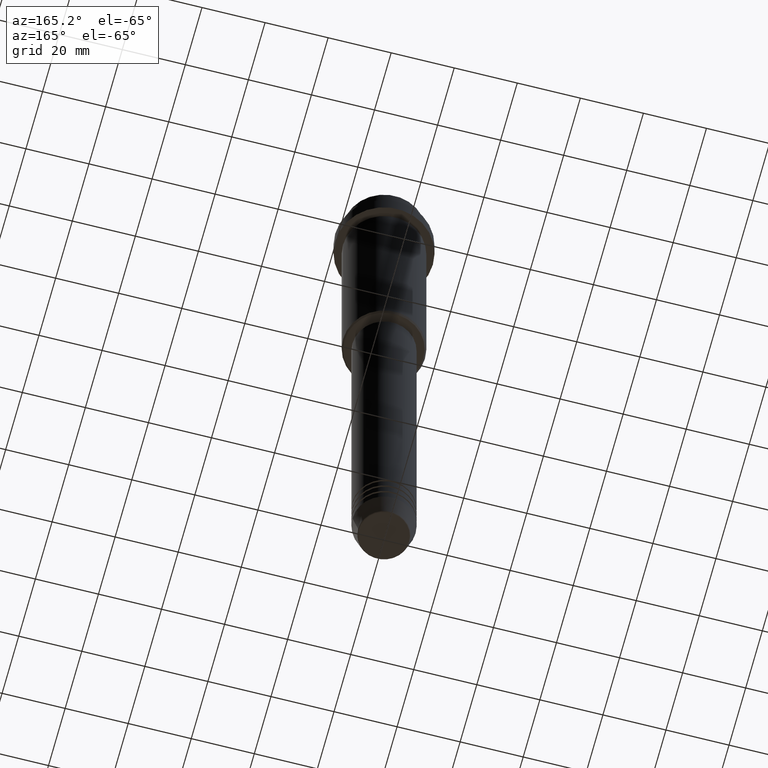
[diagram: clean part render]
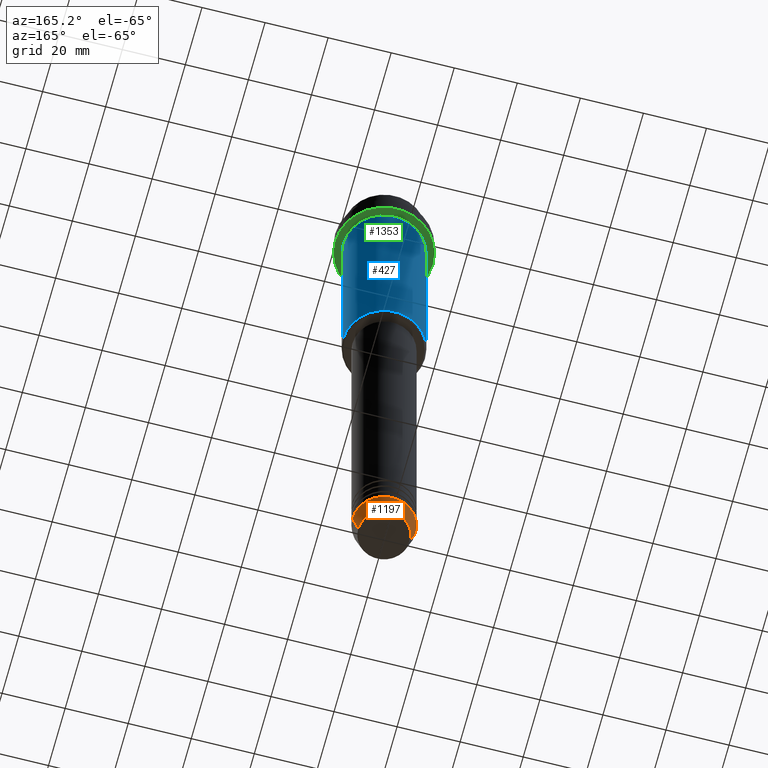
[diagram: same view with three faces highlighted in distinct colors, each labeled with its STEP entity id]
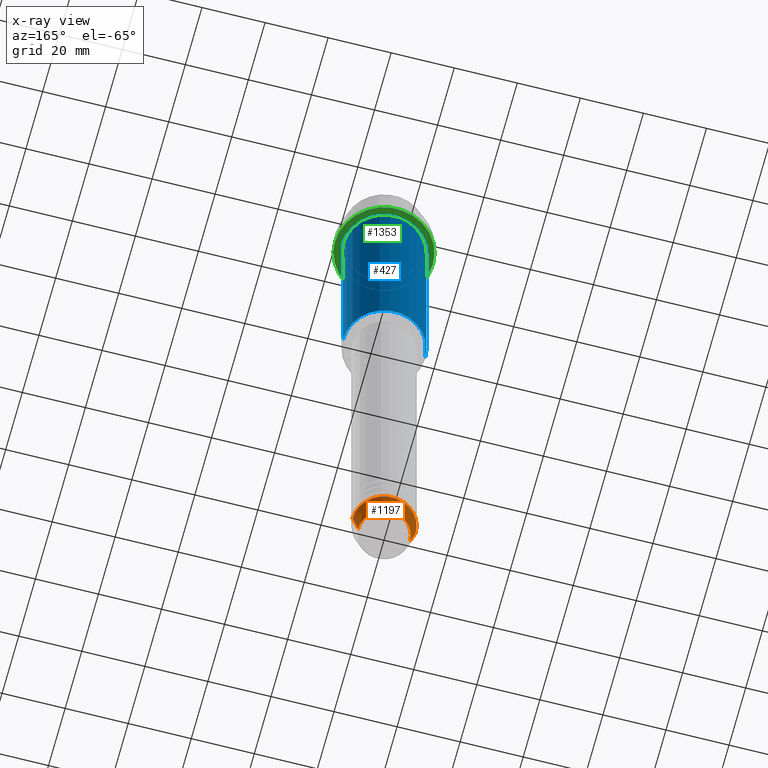
[diagram: x-ray of the same camera — body ghosted, the three highlighted faces saturated]
A machine part, auxiliary view with three faces highlighted in distinct colors.
The next image is the same camera in x-ray (body ghosted, the three faces saturated) — at least one of them is partly hidden behind the body in this view.
Their STEP definitions:

[orange] entity #1197 — the highlighted conical surface has half-angle 15 deg.
#18 = EDGE_CURVE ( 'NONE', #128, #1114, #851, .T. ) ;
#69 = DIRECTION ( 'NONE',  ( -0.000000000000000000, -0.000000000000000000, 1.000000000000000000 ) ) ;
#128 = VERTEX_POINT ( 'NONE', #676 ) ;
#138 = EDGE_LOOP ( 'NONE', ( #938, #580, #1373, #380 ) ) ;
#149 = VERTEX_POINT ( 'NONE', #365 ) ;
#155 = AXIS2_PLACEMENT_3D ( 'NONE', #706, #169, #515 ) ;
#169 = DIRECTION ( 'NONE',  ( -0.000000000000000000, -0.000000000000000000, 1.000000000000000000 ) ) ;
#187 = DIRECTION ( 'NONE',  ( -0.000000000000000000, -0.000000000000000000, 1.000000000000000000 ) ) ;
#295 = EDGE_CURVE ( 'NONE', #1405, #128, #1301, .T. ) ;
#365 = CARTESIAN_POINT ( 'NONE',  ( 10.00000000000000000, 0.000000000000000000, -213.0000000000000284 ) ) ;
#380 = ORIENTED_EDGE ( 'NONE', *, *, #1378, .F. ) ;
#417 = FACE_OUTER_BOUND ( 'NONE', #138, .T. ) ;
#422 = LINE ( 'NONE', #873, #1100 ) ;
#513 = DIRECTION ( 'NONE',  ( 1.000000000000000000, 0.000000000000000000, 0.000000000000000000 ) ) ;
#515 = DIRECTION ( 'NONE',  ( 1.000000000000000000, 0.000000000000000000, 0.000000000000000000 ) ) ;
#580 = ORIENTED_EDGE ( 'NONE', *, *, #18, .T. ) ;
#676 = CARTESIAN_POINT ( 'NONE',  ( -8.223655072137189492, 1.115877042642911856E-15, -219.6294095225512706 ) ) ;
#683 = AXIS2_PLACEMENT_3D ( 'NONE', #731, #187, #1037 ) ;
#706 = CARTESIAN_POINT ( 'NONE',  ( 0.000000000000000000, 0.000000000000000000, -219.6294095225512706 ) ) ;
#731 = CARTESIAN_POINT ( 'NONE',  ( 0.000000000000000000, 0.000000000000000000, -213.0000000000000284 ) ) ;
#851 = LINE ( 'NONE', #872, #956 ) ;
#872 = CARTESIAN_POINT ( 'NONE',  ( -10.00000000000000000, 1.224646799147353256E-15, -213.0000000000000284 ) ) ;
#873 = CARTESIAN_POINT ( 'NONE',  ( 10.00000000000000000, 0.000000000000000000, -213.0000000000000284 ) ) ;
#886 = DIRECTION ( 'NONE',  ( 0.2588190451025214611, 0.000000000000000000, 0.9659258262890679791 ) ) ;
#898 = CARTESIAN_POINT ( 'NONE',  ( 8.223655072137189492, 0.000000000000000000, -219.6294095225512706 ) ) ;
#937 = CONICAL_SURFACE ( 'NONE', #1233, 10.00000000000000000, 0.2617993877991502405 ) ;
#938 = ORIENTED_EDGE ( 'NONE', *, *, #295, .T. ) ;
#956 = VECTOR ( 'NONE', #983, 1000.000000000000114 ) ;
#983 = DIRECTION ( 'NONE',  ( -0.2588190451025214611, 3.169619151431774186E-17, 0.9659258262890679791 ) ) ;
#1037 = DIRECTION ( 'NONE',  ( 1.000000000000000000, 0.000000000000000000, 0.000000000000000000 ) ) ;
#1097 = CIRCLE ( 'NONE', #683, 10.00000000000000000 ) ;
#1100 = VECTOR ( 'NONE', #886, 1000.000000000000114 ) ;
#1114 = VERTEX_POINT ( 'NONE', #1260 ) ;
#1197 = ADVANCED_FACE ( 'NONE', ( #417 ), #937, .T. ) ;
#1223 = EDGE_CURVE ( 'NONE', #149, #1114, #1097, .T. ) ;
#1233 = AXIS2_PLACEMENT_3D ( 'NONE', #1268, #69, #513 ) ;
#1260 = CARTESIAN_POINT ( 'NONE',  ( -10.00000000000000000, 1.224646799147353256E-15, -213.0000000000000284 ) ) ;
#1268 = CARTESIAN_POINT ( 'NONE',  ( 0.000000000000000000, 0.000000000000000000, -213.0000000000000284 ) ) ;
#1301 = CIRCLE ( 'NONE', #155, 8.223655072137189492 ) ;
#1373 = ORIENTED_EDGE ( 'NONE', *, *, #1223, .F. ) ;
#1378 = EDGE_CURVE ( 'NONE', #1405, #149, #422, .T. ) ;
#1405 = VERTEX_POINT ( 'NONE', #898 ) ;

[blue] entity #427 — the highlighted cylindrical surface (partial cylindrical patch) has radius 13 mm, axis along (-0, -0, 1).
#59 = DIRECTION ( 'NONE',  ( 1.000000000000000000, 0.000000000000000000, 0.000000000000000000 ) ) ;
#79 = EDGE_CURVE ( 'NONE', #1287, #930, #744, .T. ) ;
#111 = CARTESIAN_POINT ( 'NONE',  ( 13.00000000000000000, 0.000000000000000000, 0.000000000000000000 ) ) ;
#281 = CIRCLE ( 'NONE', #328, 13.00000000000000000 ) ;
#290 = ORIENTED_EDGE ( 'NONE', *, *, #1199, .F. ) ;
#328 = AXIS2_PLACEMENT_3D ( 'NONE', #411, #1386, #59 ) ;
#333 = EDGE_LOOP ( 'NONE', ( #857, #1399, #290, #1213 ) ) ;
#355 = LINE ( 'NONE', #1220, #660 ) ;
#411 = CARTESIAN_POINT ( 'NONE',  ( 0.000000000000000000, 0.000000000000000000, -16.00000000000000000 ) ) ;
#427 = ADVANCED_FACE ( 'NONE', ( #1174 ), #521, .T. ) ;
#483 = CARTESIAN_POINT ( 'NONE',  ( 13.00000000000000000, 0.000000000000000000, -16.00000000000000000 ) ) ;
#521 = CYLINDRICAL_SURFACE ( 'NONE', #818, 13.00000000000000000 ) ;
#561 = CARTESIAN_POINT ( 'NONE',  ( -13.00000000000000000, 1.592040838891559095E-15, -84.50000000000001421 ) ) ;
#563 = DIRECTION ( 'NONE',  ( -1.000000000000000000, 0.000000000000000000, 0.000000000000000000 ) ) ;
#586 = DIRECTION ( 'NONE',  ( -0.000000000000000000, -0.000000000000000000, 1.000000000000000000 ) ) ;
#660 = VECTOR ( 'NONE', #674, 1000.000000000000000 ) ;
#674 = DIRECTION ( 'NONE',  ( -0.000000000000000000, -0.000000000000000000, 1.000000000000000000 ) ) ;
#728 = DIRECTION ( 'NONE',  ( -0.000000000000000000, -0.000000000000000000, 1.000000000000000000 ) ) ;
#734 = CARTESIAN_POINT ( 'NONE',  ( 0.000000000000000000, 0.000000000000000000, 0.000000000000000000 ) ) ;
#744 = CIRCLE ( 'NONE', #929, 13.00000000000000000 ) ;
#749 = DIRECTION ( 'NONE',  ( 1.000000000000000000, 0.000000000000000000, 0.000000000000000000 ) ) ;
#818 = AXIS2_PLACEMENT_3D ( 'NONE', #734, #728, #749 ) ;
#819 = VECTOR ( 'NONE', #1407, 1000.000000000000000 ) ;
#852 = CARTESIAN_POINT ( 'NONE',  ( 13.00000000000000000, 0.000000000000000000, -84.50000000000001421 ) ) ;
#855 = EDGE_CURVE ( 'NONE', #1287, #1105, #1204, .T. ) ;
#857 = ORIENTED_EDGE ( 'NONE', *, *, #79, .T. ) ;
#913 = VERTEX_POINT ( 'NONE', #1194 ) ;
#929 = AXIS2_PLACEMENT_3D ( 'NONE', #1210, #586, #563 ) ;
#930 = VERTEX_POINT ( 'NONE', #561 ) ;
#1054 = EDGE_CURVE ( 'NONE', #930, #913, #355, .T. ) ;
#1105 = VERTEX_POINT ( 'NONE', #483 ) ;
#1174 = FACE_OUTER_BOUND ( 'NONE', #333, .T. ) ;
#1194 = CARTESIAN_POINT ( 'NONE',  ( -13.00000000000000000, 1.592040838891559095E-15, -16.00000000000000000 ) ) ;
#1199 = EDGE_CURVE ( 'NONE', #1105, #913, #281, .T. ) ;
#1204 = LINE ( 'NONE', #111, #819 ) ;
#1210 = CARTESIAN_POINT ( 'NONE',  ( 0.000000000000000000, 0.000000000000000000, -84.50000000000001421 ) ) ;
#1213 = ORIENTED_EDGE ( 'NONE', *, *, #855, .F. ) ;
#1220 = CARTESIAN_POINT ( 'NONE',  ( -13.00000000000000000, 1.592040838891559095E-15, 0.000000000000000000 ) ) ;
#1287 = VERTEX_POINT ( 'NONE', #852 ) ;
#1386 = DIRECTION ( 'NONE',  ( -0.000000000000000000, -0.000000000000000000, 1.000000000000000000 ) ) ;
#1399 = ORIENTED_EDGE ( 'NONE', *, *, #1054, .T. ) ;
#1407 = DIRECTION ( 'NONE',  ( -0.000000000000000000, -0.000000000000000000, 1.000000000000000000 ) ) ;

[green] entity #1353 — the highlighted planar face has unit normal (0, 0, -1).
#48 = CARTESIAN_POINT ( 'NONE',  ( 12.99999999999999645, 1.592040838891558701E-15, -15.00000000000000000 ) ) ;
#91 = CIRCLE ( 'NONE', #1094, 12.99999999999999645 ) ;
#109 = FACE_BOUND ( 'NONE', #1192, .T. ) ;
#126 = ORIENTED_EDGE ( 'NONE', *, *, #292, .F. ) ;
#159 = DIRECTION ( 'NONE',  ( 1.000000000000000000, 0.000000000000000000, 0.000000000000000000 ) ) ;
#164 = DIRECTION ( 'NONE',  ( -0.000000000000000000, -0.000000000000000000, 1.000000000000000000 ) ) ;
#180 = DIRECTION ( 'NONE',  ( 1.000000000000000000, 0.000000000000000000, 0.000000000000000000 ) ) ;
#292 = EDGE_CURVE ( 'NONE', #1020, #675, #933, .T. ) ;
#331 = CARTESIAN_POINT ( 'NONE',  ( 0.000000000000000000, 15.50000000000000000, -15.00000000000000000 ) ) ;
#453 = CARTESIAN_POINT ( 'NONE',  ( 15.50000000000000000, 0.000000000000000000, -15.00000000000000000 ) ) ;
#469 = ORIENTED_EDGE ( 'NONE', *, *, #535, .T. ) ;
#535 = EDGE_CURVE ( 'NONE', #1059, #1230, #91, .T. ) ;
#538 = DIRECTION ( 'NONE',  ( 0.000000000000000000, 0.000000000000000000, -1.000000000000000000 ) ) ;
#549 = DIRECTION ( 'NONE',  ( -0.000000000000000000, -0.000000000000000000, 1.000000000000000000 ) ) ;
#556 = AXIS2_PLACEMENT_3D ( 'NONE', #331, #538, #1402 ) ;
#594 = CARTESIAN_POINT ( 'NONE',  ( -15.50000000000000000, 1.898202538678397557E-15, -15.00000000000000000 ) ) ;
#633 = PLANE ( 'NONE',  #556 ) ;
#675 = VERTEX_POINT ( 'NONE', #453 ) ;
#714 = DIRECTION ( 'NONE',  ( -0.000000000000000000, -0.000000000000000000, 1.000000000000000000 ) ) ;
#736 = DIRECTION ( 'NONE',  ( -0.000000000000000000, -0.000000000000000000, 1.000000000000000000 ) ) ;
#738 = ORIENTED_EDGE ( 'NONE', *, *, #1183, .F. ) ;
#753 = CARTESIAN_POINT ( 'NONE',  ( 0.000000000000000000, 0.000000000000000000, -15.00000000000000000 ) ) ;
#834 = DIRECTION ( 'NONE',  ( -1.000000000000000000, 0.000000000000000000, 0.000000000000000000 ) ) ;
#890 = AXIS2_PLACEMENT_3D ( 'NONE', #1374, #164, #180 ) ;
#933 = CIRCLE ( 'NONE', #1370, 15.50000000000000000 ) ;
#947 = ORIENTED_EDGE ( 'NONE', *, *, #1347, .T. ) ;
#1020 = VERTEX_POINT ( 'NONE', #594 ) ;
#1059 = VERTEX_POINT ( 'NONE', #48 ) ;
#1063 = CARTESIAN_POINT ( 'NONE',  ( -12.99999999999999645, 0.000000000000000000, -15.00000000000000000 ) ) ;
#1094 = AXIS2_PLACEMENT_3D ( 'NONE', #1307, #549, #834 ) ;
#1147 = CIRCLE ( 'NONE', #890, 15.50000000000000000 ) ;
#1183 = EDGE_CURVE ( 'NONE', #675, #1020, #1147, .T. ) ;
#1185 = FACE_OUTER_BOUND ( 'NONE', #1321, .T. ) ;
#1192 = EDGE_LOOP ( 'NONE', ( #947, #469 ) ) ;
#1230 = VERTEX_POINT ( 'NONE', #1063 ) ;
#1266 = CARTESIAN_POINT ( 'NONE',  ( 0.000000000000000000, 0.000000000000000000, -15.00000000000000000 ) ) ;
#1307 = CARTESIAN_POINT ( 'NONE',  ( 0.000000000000000000, 0.000000000000000000, -15.00000000000000000 ) ) ;
#1310 = DIRECTION ( 'NONE',  ( -1.000000000000000000, 0.000000000000000000, 0.000000000000000000 ) ) ;
#1321 = EDGE_LOOP ( 'NONE', ( #738, #126 ) ) ;
#1324 = CIRCLE ( 'NONE', #1348, 12.99999999999999645 ) ;
#1347 = EDGE_CURVE ( 'NONE', #1230, #1059, #1324, .T. ) ;
#1348 = AXIS2_PLACEMENT_3D ( 'NONE', #753, #736, #1310 ) ;
#1353 = ADVANCED_FACE ( 'NONE', ( #109, #1185 ), #633, .T. ) ;
#1370 = AXIS2_PLACEMENT_3D ( 'NONE', #1266, #714, #159 ) ;
#1374 = CARTESIAN_POINT ( 'NONE',  ( 0.000000000000000000, 0.000000000000000000, -15.00000000000000000 ) ) ;
#1402 = DIRECTION ( 'NONE',  ( -1.000000000000000000, 0.000000000000000000, -0.000000000000000000 ) ) ;